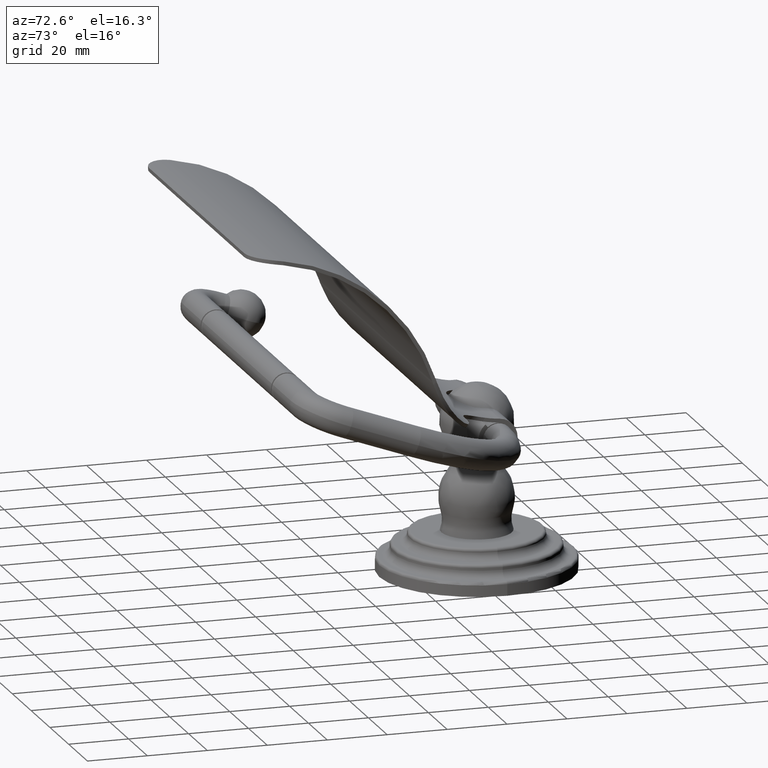
[diagram: clean part render]
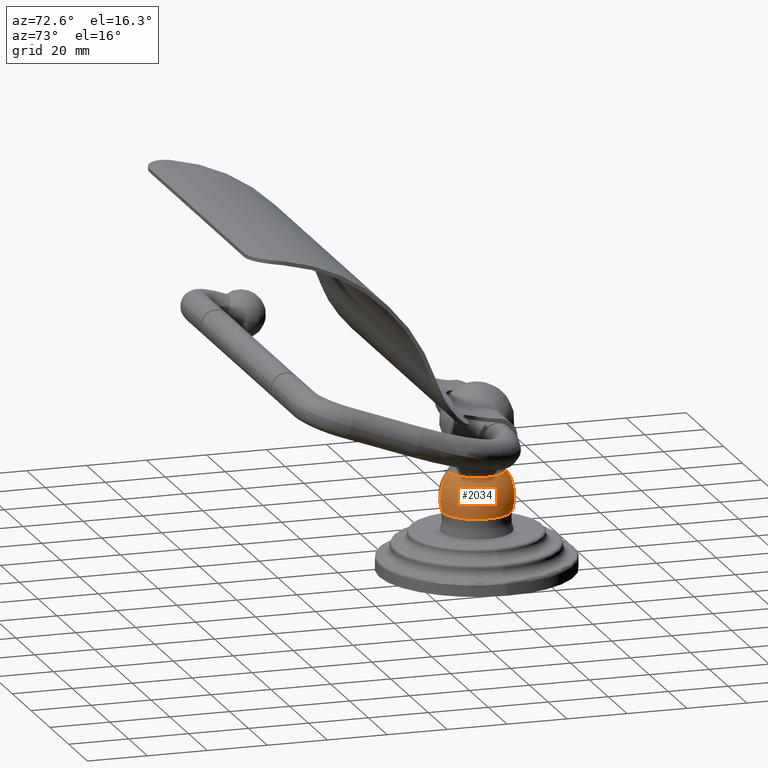
[diagram: same view with one face highlighted and labeled with its STEP entity id]
A machine part, auxiliary view. The second image highlights one B-rep face of the part: STEP entity #2034.
In plain terms, the highlighted face is a freeform B-spline surface patch.
Its self-contained STEP definition (entity closure, byte-faithful):
#211=CARTESIAN_POINT('',(0.E0,-7.8E-2,9.45E-1));
#212=DIRECTION('',(1.E0,0.E0,0.E0));
#213=DIRECTION('',(0.E0,9.513021252627E-1,-3.082600630484E-1));
#214=AXIS2_PLACEMENT_3D('',#211,#212,#213);
#216=CARTESIAN_POINT('',(0.E0,0.E0,7.723743646929E-1));
#217=DIRECTION('',(0.E0,0.E0,-1.E0));
#218=DIRECTION('',(0.E0,1.E0,0.E0));
#219=AXIS2_PLACEMENT_3D('',#216,#217,#218);
#221=CARTESIAN_POINT('',(0.E0,7.8E-2,9.45E-1));
#222=DIRECTION('',(-1.E0,0.E0,0.E0));
#223=DIRECTION('',(0.E0,-9.513021252627E-1,-3.082600630484E-1));
#224=AXIS2_PLACEMENT_3D('',#221,#222,#223);
#226=CARTESIAN_POINT('',(0.E0,0.E0,1.289080822273E0));
#227=DIRECTION('',(0.E0,0.E0,1.E0));
#228=DIRECTION('',(0.E0,-1.E0,0.E0));
#229=AXIS2_PLACEMENT_3D('',#226,#227,#228);
#1480=CARTESIAN_POINT('',(0.E0,-3.638239329685E-1,1.289080822273E0));
#1482=VERTEX_POINT('',#1480);
#1488=CARTESIAN_POINT('',(0.E0,4.547291901471E-1,7.723743646929E-1));
#1489=CARTESIAN_POINT('',(0.E0,3.638239329685E-1,1.289080822273E0));
#1490=VERTEX_POINT('',#1488);
#1491=VERTEX_POINT('',#1489);
#1496=CARTESIAN_POINT('',(0.E0,-4.547291901471E-1,7.723743646929E-1));
#1497=VERTEX_POINT('',#1496);
#2010=CARTESIAN_POINT('',(0.E0,-4.547291901471E-1,7.723743646929E-1));
#2011=CARTESIAN_POINT('',(0.E0,-5.131773872270E-1,9.527476947637E-1));
#2012=CARTESIAN_POINT('',(0.E0,-4.803240325965E-1,1.139486515131E0));
#2013=CARTESIAN_POINT('',(0.E0,-3.638239329685E-1,1.289080822273E0));
#2014=CARTESIAN_POINT('',(9.094583802943E-1,-4.547291901471E-1,
7.723743646929E-1));
#2015=CARTESIAN_POINT('',(1.026354774454E0,-5.131773872270E-1,
9.527476947637E-1));
#2016=CARTESIAN_POINT('',(9.606480651931E-1,-4.803240325965E-1,
1.139486515131E0));
#2017=CARTESIAN_POINT('',(7.276478659369E-1,-3.638239329685E-1,
1.289080822273E0));
#2018=CARTESIAN_POINT('',(9.094583802943E-1,4.547291901471E-1,
7.723743646929E-1));
#2019=CARTESIAN_POINT('',(1.026354774454E0,5.131773872270E-1,
9.527476947637E-1));
#2020=CARTESIAN_POINT('',(9.606480651931E-1,4.803240325965E-1,
1.139486515131E0));
#2021=CARTESIAN_POINT('',(7.276478659369E-1,3.638239329685E-1,
1.289080822273E0));
#2022=CARTESIAN_POINT('',(0.E0,4.547291901471E-1,7.723743646929E-1));
#2023=CARTESIAN_POINT('',(0.E0,5.131773872270E-1,9.527476947637E-1));
#2024=CARTESIAN_POINT('',(0.E0,4.803240325965E-1,1.139486515131E0));
#2025=CARTESIAN_POINT('',(0.E0,3.638239329685E-1,1.289080822273E0));
#2026=(BOUNDED_SURFACE()B_SPLINE_SURFACE(3,3,((#2010,#2011,#2012,#2013),(#2014,
#2015,#2016,#2017),(#2018,#2019,#2020,#2021),(#2022,#2023,#2024,#2025)),
.UNSPECIFIED.,.F.,.F.,.F.)B_SPLINE_SURFACE_WITH_KNOTS((4,4),(4,4),(0.E0,1.E0),(
0.E0,1.E0),.UNSPECIFIED.)GEOMETRIC_REPRESENTATION_ITEM()RATIONAL_B_SPLINE_SURFACE(((2.123705439175E0,1.958764853608E0,1.958764853608E0,2.123705439175E0),(
7.079018130582E-1,6.529216178695E-1,6.529216178695E-1,7.079018130582E-1),(
7.079018130582E-1,6.529216178695E-1,6.529216178695E-1,7.079018130582E-1),(
2.123705439175E0,1.958764853608E0,1.958764853608E0,2.123705439175E0)))REPRESENTATION_ITEM('')SURFACE());
#2027=ORIENTED_EDGE('',*,*,#1963,.T.);
#2028=ORIENTED_EDGE('',*,*,#2000,.T.);
#2030=ORIENTED_EDGE('',*,*,#2029,.T.);
#2031=ORIENTED_EDGE('',*,*,#2003,.F.);
#2032=EDGE_LOOP('',(#2027,#2028,#2030,#2031));
#2033=FACE_OUTER_BOUND('',#2032,.F.);
#2034=ADVANCED_FACE('',(#2033),#2026,.T.);
#215=CIRCLE('',#214,5.6E-1);
#220=CIRCLE('',#219,4.547291901471E-1);
#225=CIRCLE('',#224,5.6E-1);
#230=CIRCLE('',#229,3.638239329685E-1);
#1963=EDGE_CURVE('',#1490,#1497,#220,.T.);
#2000=EDGE_CURVE('',#1497,#1482,#225,.T.);
#2003=EDGE_CURVE('',#1490,#1491,#215,.T.);
#2029=EDGE_CURVE('',#1482,#1491,#230,.T.);